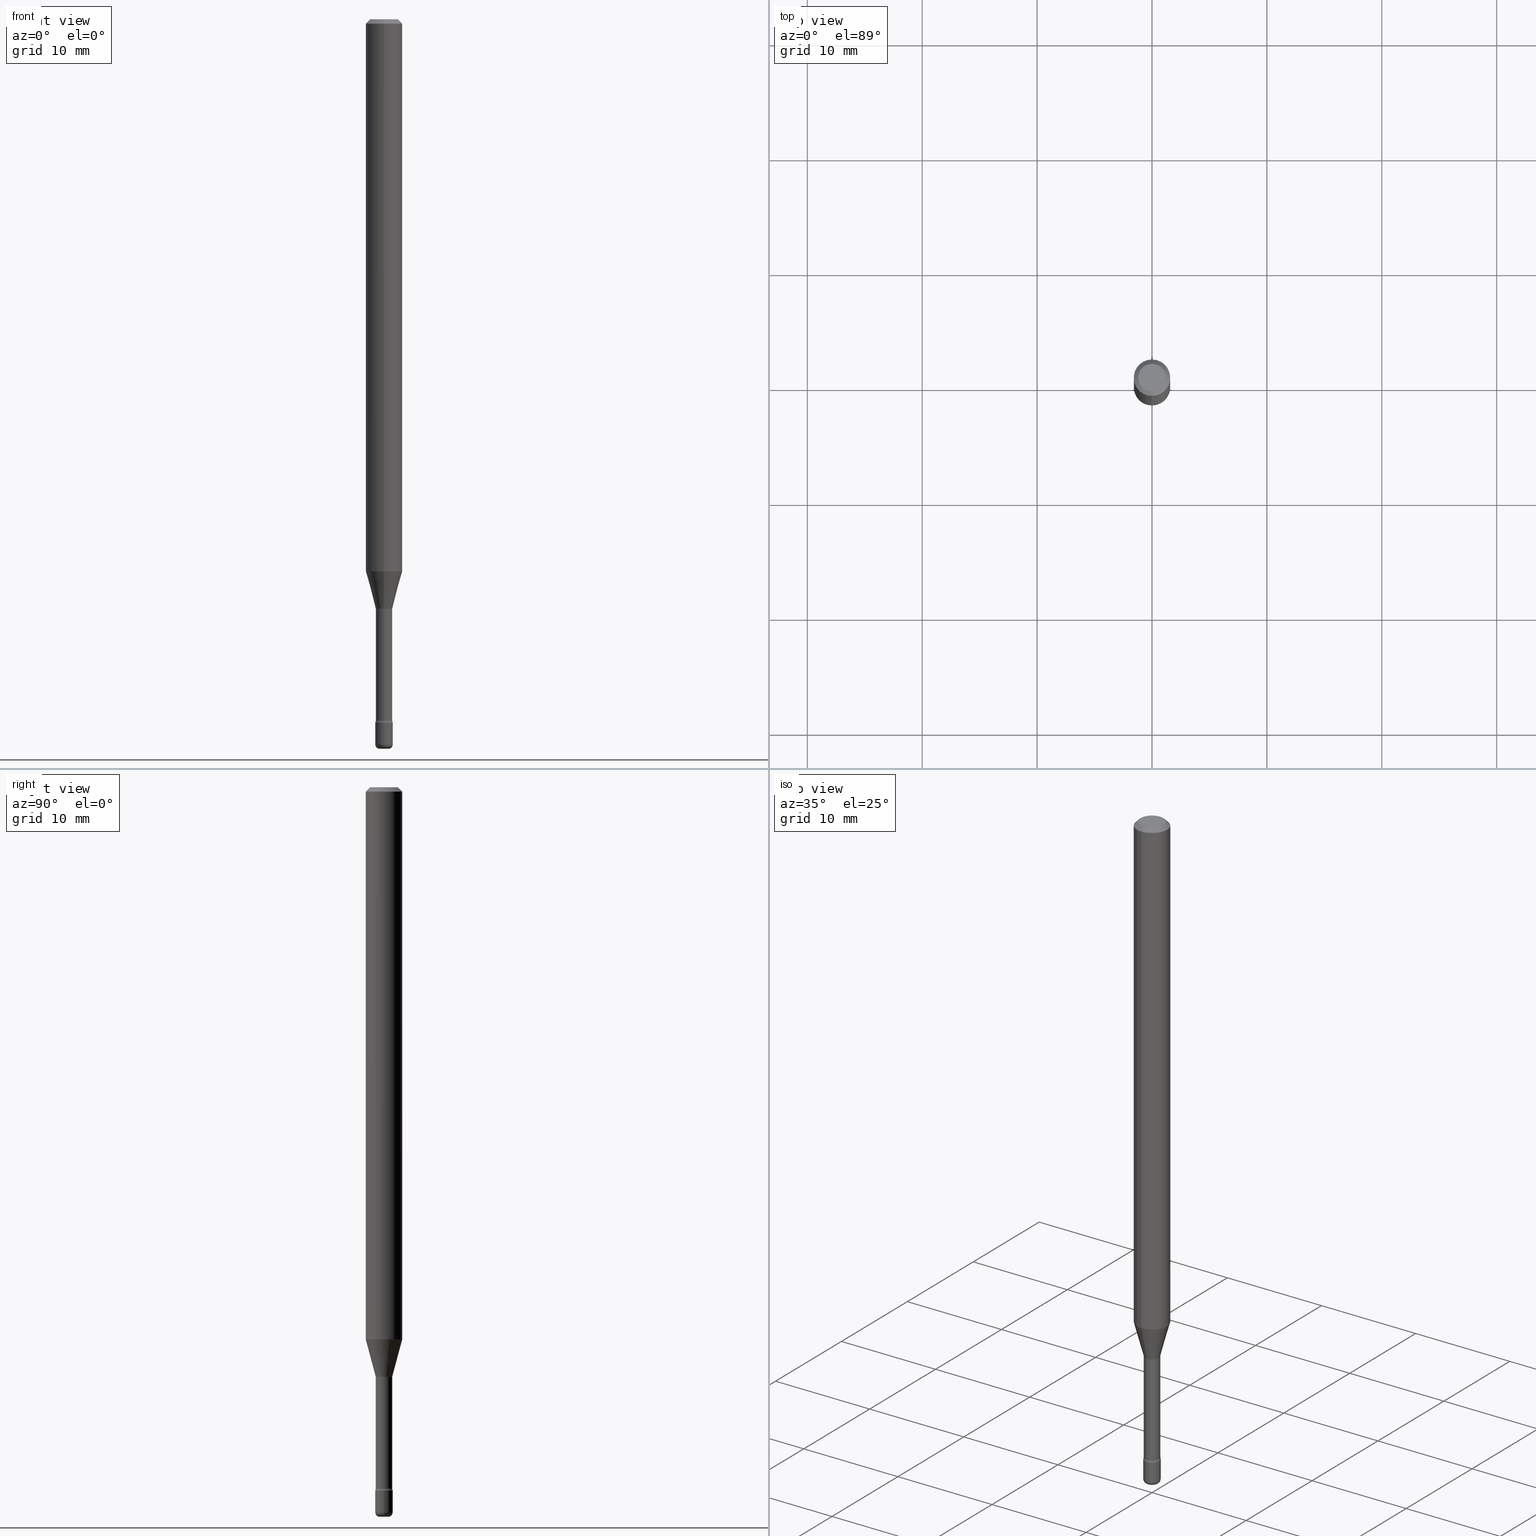
[diagram: canonical four-view strip — front | top / right | iso, engineering-drawing reading convention]
A machine part, canonical four-view strip (front | top / right | iso — engineering-drawing reading convention). The complete STEP part file that produces these views, byte-faithful:
ISO-10303-21;
HEADER;
FILE_DESCRIPTION (( 'STEP AP203' ),
    '1' );
FILE_NAME ('08828.STEP',
    '2024-03-06T20:04:18',
    ( '' ),
    ( '' ),
    'SwSTEP 2.0',
    'SolidWorks 2023',
    '' );
FILE_SCHEMA (( 'CONFIG_CONTROL_DESIGN' ));
ENDSEC;

DATA;
#1 = DIRECTION ( 'NONE',  ( -2.445549682807936912E-29, 3.491365518916084004E-15, 1.000000000000000000 ) ) ;
#2 = ADVANCED_FACE ( 'NONE', ( #336 ), #453, .T. ) ;
#3 = CARTESIAN_POINT ( 'NONE',  ( -1.169113584055446105E-44, 1.669184350826100908E-30, 4.780733988912460139E-16 ) ) ;
#4 = SHAPE_DEFINITION_REPRESENTATION ( #140, #395 ) ;
#5 = VECTOR ( 'NONE', #462, 39.37007874015748854 ) ;
#6 = ORIENTED_EDGE ( 'NONE', *, *, #440, .T. ) ;
#7 = AXIS2_PLACEMENT_3D ( 'NONE', #520, #309, #563 ) ;
#8 = CC_DESIGN_SECURITY_CLASSIFICATION ( #143, ( #531 ) ) ;
#9 = AXIS2_PLACEMENT_3D ( 'NONE', #331, #109, #168 ) ;
#10 = EDGE_LOOP ( 'NONE', ( #251, #386, #241, #548 ) ) ;
#11 = ORIENTED_EDGE ( 'NONE', *, *, #517, .T. ) ;
#12 = FACE_OUTER_BOUND ( 'NONE', #10, .T. ) ;
#13 = VECTOR ( 'NONE', #28, 39.37007874015748143 ) ;
#14 = EDGE_LOOP ( 'NONE', ( #235, #286, #69, #72 ) ) ;
#15 = EDGE_CURVE ( 'NONE', #368, #459, #401, .T. ) ;
#16 = ORIENTED_EDGE ( 'NONE', *, *, #128, .T. ) ;
#17 = UNCERTAINTY_MEASURE_WITH_UNIT (LENGTH_MEASURE( 1.000000000000000082E-05 ), #253, 'distance_accuracy_value', 'NONE');
#18 = DIRECTION ( 'NONE',  ( -6.982962677686265133E-15, -1.000000000000000000, 0.000000000000000000 ) ) ;
#19 = ORIENTED_EDGE ( 'NONE', *, *, #569, .F. ) ;
#20 = CIRCLE ( 'NONE', #95, 0.01500000000000001853 ) ;
#21 = CARTESIAN_POINT ( 'NONE',  ( 4.440892098500625669E-16, 0.06250000000000000000, 2.598630539589907883E-16 ) ) ;
#22 = VERTEX_POINT ( 'NONE', #282 ) ;
#23 = AXIS2_PLACEMENT_3D ( 'NONE', #137, #485, #132 ) ;
#24 = FACE_OUTER_BOUND ( 'NONE', #125, .T. ) ;
#25 = LOCAL_TIME ( 15, 4, 18.00000000000000000, #83 ) ;
#26 = ADVANCED_FACE ( 'NONE', ( #378 ), #80, .T. ) ;
#27 = COORDINATED_UNIVERSAL_TIME_OFFSET ( 5, 0, .BEHIND. ) ;
#28 = DIRECTION ( 'NONE',  ( -2.445468806185136877E-29, 3.491481338843145188E-15, 1.000000000000000000 ) ) ;
#29 = ORIENTED_EDGE ( 'NONE', *, *, #357, .F. ) ;
#30 = ORIENTED_EDGE ( 'NONE', *, *, #106, .T. ) ;
#31 = ORIENTED_EDGE ( 'NONE', *, *, #153, .T. ) ;
#32 = ORIENTED_EDGE ( 'NONE', *, *, #540, .T. ) ;
#33 = CARTESIAN_POINT ( 'NONE',  ( 6.076989983370064174E-29, -8.676331127025216680E-15, -2.484999999999999876 ) ) ;
#34 = DIRECTION ( 'NONE',  ( -2.445549682807936912E-29, 3.491365518916084004E-15, 1.000000000000000000 ) ) ;
#35 = CALENDAR_DATE ( 2024, 6, 3 ) ;
#36 = CARTESIAN_POINT ( 'NONE',  ( 2.131628207280890399E-16, 0.02999999999999159242, -2.410000000000000142 ) ) ;
#37 = LINE ( 'NONE', #173, #442 ) ;
#38 = EDGE_CURVE ( 'NONE', #379, #110, #552, .T. ) ;
#39 = FACE_OUTER_BOUND ( 'NONE', #494, .T. ) ;
#40 = AXIS2_PLACEMENT_3D ( 'NONE', #526, #444, #219 ) ;
#41 = CYLINDRICAL_SURFACE ( 'NONE', #7, 0.06250000000000000000 ) ;
#42 = APPROVAL ( #436, 'UNSPECIFIED' ) ;
#43 = CARTESIAN_POINT ( 'NONE',  ( 6.076989983370064174E-29, -8.676331127025216680E-15, -2.484999999999999876 ) ) ;
#44 = DIRECTION ( 'NONE',  ( -2.445468806185136877E-29, 3.491481338843145188E-15, 1.000000000000000000 ) ) ;
#45 = PRODUCT ( '08828', '08828', '', ( #399 ) ) ;
#46 = FACE_OUTER_BOUND ( 'NONE', #497, .T. ) ;
#47 = PERSON_AND_ORGANIZATION ( #507, #202 ) ;
#48 = DIRECTION ( 'NONE',  ( -2.445468806185136597E-29, 3.491481338843145583E-15, 1.000000000000000000 ) ) ;
#49 = DIRECTION ( 'NONE',  ( 1.000000000000000000, -6.982962677686299054E-15, 0.000000000000000000 ) ) ;
#50 = CALENDAR_DATE ( 2024, 6, 3 ) ;
#51 = EDGE_CURVE ( 'NONE', #159, #110, #499, .T. ) ;
#52 = AXIS2_PLACEMENT_3D ( 'NONE', #506, #555, #334 ) ;
#53 = VERTEX_POINT ( 'NONE', #333 ) ;
#54 = CARTESIAN_POINT ( 'NONE',  ( 0.01500000000000000291, -8.833447787273159890E-15, -2.500000000000000000 ) ) ;
#55 = FACE_OUTER_BOUND ( 'NONE', #367, .T. ) ;
#56 = DIRECTION ( 'NONE',  ( -2.445549682807936912E-29, 3.491365518916084004E-15, 1.000000000000000000 ) ) ;
#57 = DIRECTION ( 'NONE',  ( -6.982962677686265133E-15, -1.000000000000000000, 3.491365518916083609E-15 ) ) ;
#58 = DIRECTION ( 'NONE',  ( 2.445549682807936912E-29, -3.491365518916084004E-15, -1.000000000000000000 ) ) ;
#59 = CIRCLE ( 'NONE', #76, 0.01500000000000000291 ) ;
#60 = AXIS2_PLACEMENT_3D ( 'NONE', #571, #48, #558 ) ;
#61 = EDGE_CURVE ( 'NONE', #276, #379, #254, .T. ) ;
#62 = CIRCLE ( 'NONE', #355, 0.03000000000000000583 ) ;
#63 = ORIENTED_EDGE ( 'NONE', *, *, #446, .T. ) ;
#64 = DATE_AND_TIME ( #35, #239 ) ;
#65 = DIRECTION ( 'NONE',  ( 4.937700262164546464E-15, 0.7071067811865449082, -0.7071067811865501263 ) ) ;
#66 = AXIS2_PLACEMENT_3D ( 'NONE', #570, #478, #130 ) ;
#67 = CIRCLE ( 'NONE', #417, 0.04750000000000000749 ) ;
#68 = CARTESIAN_POINT ( 'NONE',  ( -0.01500000000000000291, -8.569749716661202346E-15, -2.484999999999999876 ) ) ;
#69 = ORIENTED_EDGE ( 'NONE', *, *, #148, .T. ) ;
#70 = DIRECTION ( 'NONE',  ( -2.445549682807936912E-29, 3.491365518916084004E-15, 1.000000000000000000 ) ) ;
#71 = CARTESIAN_POINT ( 'NONE',  ( 4.944839800127768630E-29, -7.059453053068826895E-15, -2.021974787463811207 ) ) ;
#72 = ORIENTED_EDGE ( 'NONE', *, *, #556, .F. ) ;
#73 = EDGE_CURVE ( 'NONE', #337, #195, #118, .T. ) ;
#74 = CARTESIAN_POINT ( 'NONE',  ( 4.440892098501091590E-16, 0.06249999999999995143, -0.01500000000000024578 ) ) ;
#75 = ORIENTED_EDGE ( 'NONE', *, *, #341, .F. ) ;
#76 = AXIS2_PLACEMENT_3D ( 'NONE', #166, #208, #298 ) ;
#77 = MANIFOLD_SOLID_BREP ( 'Body-Move/Copy2[1]', #111 ) ;
#78 = LOCAL_TIME ( 15, 4, 18.00000000000000000, #481 ) ;
#79 = DIRECTION ( 'NONE',  ( -2.445549682807936912E-29, 3.491365518916084004E-15, 1.000000000000000000 ) ) ;
#80 = CYLINDRICAL_SURFACE ( 'NONE', #9, 0.03000000000000000583 ) ;
#81 = ORIENTED_EDGE ( 'NONE', *, *, #227, .F. ) ;
#82 = DIRECTION ( 'NONE',  ( -6.982962677686265922E-15, -1.000000000000000000, 0.000000000000000000 ) ) ;
#83 = COORDINATED_UNIVERSAL_TIME_OFFSET ( 5, 0, .BEHIND. ) ;
#84 = DIRECTION ( 'NONE',  ( 1.839019923739598738E-15, 0.2588190451025247363, 0.9659258262890673130 ) ) ;
#85 = EDGE_LOOP ( 'NONE', ( #356, #105, #541, #146 ) ) ;
#86 = DIRECTION ( 'NONE',  ( 1.000000000000000000, -6.982962677686266711E-15, 4.876176775795935793E-29 ) ) ;
#87 = CC_DESIGN_PERSON_AND_ORGANIZATION_ASSIGNMENT ( #152, #323, ( #531 ) ) ;
#88 = TOROIDAL_SURFACE ( 'NONE', #66, 0.04320000000000001616, 0.01500000000000001159 ) ;
#89 = DIRECTION ( 'NONE',  ( -2.445549682807936912E-29, 3.491365518916084004E-15, 1.000000000000000000 ) ) ;
#90 = AXIS2_PLACEMENT_3D ( 'NONE', #313, #185, #187 ) ;
#91 = SECURITY_CLASSIFICATION_LEVEL ( 'unclassified' ) ;
#92 = CYLINDRICAL_SURFACE ( 'NONE', #400, 0.06250000000000000000 ) ;
#93 = ORIENTED_EDGE ( 'NONE', *, *, #267, .T. ) ;
#94 = FACE_OUTER_BOUND ( 'NONE', #85, .T. ) ;
#95 = AXIS2_PLACEMENT_3D ( 'NONE', #245, #413, #250 ) ;
#96 = TOROIDAL_SURFACE ( 'NONE', #201, 0.01500000000000000291, 0.01500000000000039843 ) ;
#97 = VECTOR ( 'NONE', #44, 39.37007874015748143 ) ;
#98 = CARTESIAN_POINT ( 'NONE',  ( 3.840629472727447874E-16, 0.04750000000000000749, -1.929345507921889422E-16 ) ) ;
#99 = ORIENTED_EDGE ( 'NONE', *, *, #556, .T. ) ;
#100 = ADVANCED_FACE ( 'NONE', ( #456 ), #234, .T. ) ;
#101 = CARTESIAN_POINT ( 'NONE',  ( 5.876156823005485882E-29, -8.389594600327222537E-15, -2.402875394747777449 ) ) ;
#102 = ORIENTED_EDGE ( 'NONE', *, *, #38, .F. ) ;
#103 = CONICAL_SURFACE ( 'NONE', #457, 0.02871111260566398468, 0.2617993877991500740 ) ;
#104 = EDGE_LOOP ( 'NONE', ( #297, #375, #508, #342 ) ) ;
#105 = ORIENTED_EDGE ( 'NONE', *, *, #73, .T. ) ;
#106 = EDGE_CURVE ( 'NONE', #230, #361, #458, .T. ) ;
#107 = DIRECTION ( 'NONE',  ( -2.445549682807936632E-29, 3.491365518916083609E-15, 1.000000000000000000 ) ) ;
#108 = AXIS2_PLACEMENT_3D ( 'NONE', #435, #56, #310 ) ;
#109 = DIRECTION ( 'NONE',  ( -2.445468806185136597E-29, 3.491481338843145583E-15, 1.000000000000000000 ) ) ;
#110 = VERTEX_POINT ( 'NONE', #74 ) ;
#111 = CLOSED_SHELL ( 'NONE', ( #26, #193, #461, #319, #405, #509 ) ) ;
#112 = AXIS2_PLACEMENT_3D ( 'NONE', #525, #396, #516 ) ;
#113 = DIRECTION ( 'NONE',  ( -1.000000000000000000, 6.982962677686265922E-15, -4.883557194083112340E-29 ) ) ;
#114 = CARTESIAN_POINT ( 'NONE',  ( 2.003730514843482726E-16, 0.02820000000000000631, 3.796168912578124951E-16 ) ) ;
#115 = CARTESIAN_POINT ( 'NONE',  ( 5.893579822906179826E-29, -8.414470026611981678E-15, -2.410000000000000142 ) ) ;
#116 = CARTESIAN_POINT ( 'NONE',  ( 3.668324524211912374E-31, -5.237048278374135497E-17, -0.01500000000000002720 ) ) ;
#117 = CC_DESIGN_PERSON_AND_ORGANIZATION_ASSIGNMENT ( #338, #206, ( #384 ) ) ;
#118 = LINE ( 'NONE', #114, #524 ) ;
#119 = ORIENTED_EDGE ( 'NONE', *, *, #374, .T. ) ;
#120 = LENGTH_MEASURE_WITH_UNIT ( LENGTH_MEASURE( 0.02539999999999999897 ), #183 );
#121 = EDGE_LOOP ( 'NONE', ( #244, #30, #402, #475 ) ) ;
#122 = ORIENTED_EDGE ( 'NONE', *, *, #440, .F. ) ;
#123 = CIRCLE ( 'NONE', #521, 0.02999999999999999889 ) ;
#124 = DIRECTION ( 'NONE',  ( -6.982962677686265922E-15, -1.000000000000000000, 3.491365518916083609E-15 ) ) ;
#125 = EDGE_LOOP ( 'NONE', ( #326, #63, #564, #19 ) ) ;
#126 = DIRECTION ( 'NONE',  ( -6.982962677686265133E-15, -1.000000000000000000, 0.000000000000000000 ) ) ;
#127 = EDGE_LOOP ( 'NONE', ( #353, #99, #279, #460 ) ) ;
#128 = EDGE_CURVE ( 'NONE', #463, #195, #493, .T. ) ;
#129 = DIRECTION ( 'NONE',  ( -6.982962677686267499E-15, -1.000000000000000000, 0.000000000000000000 ) ) ;
#130 = DIRECTION ( 'NONE',  ( -6.982962677686266711E-15, -1.000000000000000000, 3.491365518916084398E-15 ) ) ;
#131 = CARTESIAN_POINT ( 'NONE',  ( -0.03000000000000020012, -8.463168306297186435E-15, -2.484999999999999876 ) ) ;
#132 = DIRECTION ( 'NONE',  ( -6.982962677686265133E-15, -1.000000000000000000, 0.000000000000000000 ) ) ;
#133 = AXIS2_PLACEMENT_3D ( 'NONE', #381, #205, #82 ) ;
#134 = CARTESIAN_POINT ( 'NONE',  ( 6.630007218027207652E-46, -9.454209125010409695E-32, -2.709468864367492987E-17 ) ) ;
#135 = VECTOR ( 'NONE', #365, 39.37007874015748143 ) ;
#136 = FACE_OUTER_BOUND ( 'NONE', #268, .T. ) ;
#137 = CARTESIAN_POINT ( 'NONE',  ( 4.944839800127768630E-29, -7.059453053068826895E-15, -2.021974787463811207 ) ) ;
#138 = DIRECTION ( 'NONE',  ( -2.445468806185136597E-29, 3.491481338843145583E-15, 1.000000000000000000 ) ) ;
#139 = CARTESIAN_POINT ( 'NONE',  ( -1.969195475107527270E-16, -0.02820000000000000631, 5.765299065246797300E-16 ) ) ;
#140 = PRODUCT_DEFINITION_SHAPE ( 'NONE', 'NONE',  #384 ) ;
#141 = CIRCLE ( 'NONE', #529, 0.02820000000000000631 ) ;
#142 = FACE_OUTER_BOUND ( 'NONE', #289, .T. ) ;
#143 = SECURITY_CLASSIFICATION ( '', '', #91 ) ;
#144 = CC_DESIGN_DATE_AND_TIME_ASSIGNMENT ( #304, #311, ( #143 ) ) ;
#145 = ORIENTED_EDGE ( 'NONE', *, *, #374, .F. ) ;
#146 = ORIENTED_EDGE ( 'NONE', *, *, #267, .F. ) ;
#147 = DIRECTION ( 'NONE',  ( -2.445468806185136597E-29, 3.491481338843145583E-15, 1.000000000000000000 ) ) ;
#148 = EDGE_CURVE ( 'NONE', #459, #156, #161, .T. ) ;
#149 = CARTESIAN_POINT ( 'NONE',  ( 0.000000000000000000, 0.000000000000000000, 0.000000000000000000 ) ) ;
#150 = CARTESIAN_POINT ( 'NONE',  ( 6.113672015462842613E-29, -8.728703347107864943E-15, -2.500000000000000000 ) ) ;
#151 = CIRCLE ( 'NONE', #52, 0.02871111260566398468 ) ;
#152 = PERSON_AND_ORGANIZATION ( #507, #202 ) ;
#153 = EDGE_CURVE ( 'NONE', #368, #195, #20, .T. ) ;
#154 = EDGE_LOOP ( 'NONE', ( #554, #11, #542, #537 ) ) ;
#155 = APPLICATION_CONTEXT ( 'configuration controlled 3d designs of mechanical parts and assemblies' ) ;
#156 = VERTEX_POINT ( 'NONE', #204 ) ;
#157 = ORIENTED_EDGE ( 'NONE', *, *, #153, .F. ) ;
#158 = ORIENTED_EDGE ( 'NONE', *, *, #389, .F. ) ;
#159 = VERTEX_POINT ( 'NONE', #511 ) ;
#160 = CIRCLE ( 'NONE', #431, 0.01500000000000001159 ) ;
#161 = LINE ( 'NONE', #288, #5 ) ;
#162 = LOCAL_TIME ( 15, 4, 18.00000000000000000, #477 ) ;
#163 = EDGE_LOOP ( 'NONE', ( #75, #533 ) ) ;
#164 = AXIS2_PLACEMENT_3D ( 'NONE', #469, #504, #18 ) ;
#165 = DIRECTION ( 'NONE',  ( -2.445549682807936912E-29, 3.491365518916084004E-15, 1.000000000000000000 ) ) ;
#166 = CARTESIAN_POINT ( 'NONE',  ( 6.113672015462842613E-29, -8.728703347107864943E-15, -2.500000000000000000 ) ) ;
#167 = DIRECTION ( 'NONE',  ( -2.445549682807936912E-29, 3.491365518916084004E-15, 1.000000000000000000 ) ) ;
#168 = DIRECTION ( 'NONE',  ( 1.000000000000000000, -6.982962677686266711E-15, 4.876176775795935793E-29 ) ) ;
#169 = CIRCLE ( 'NONE', #232, 0.04750000000000000749 ) ;
#170 = CC_DESIGN_APPROVAL ( #189, ( #531 ) ) ;
#171 = FACE_OUTER_BOUND ( 'NONE', #163, .T. ) ;
#172 = DIRECTION ( 'NONE',  ( -1.000000000000000000, 6.982962677686265922E-15, -4.883557194083112340E-29 ) ) ;
#173 = CARTESIAN_POINT ( 'NONE',  ( -4.364351673553916201E-16, -0.06250000000000000000, 6.962837438235013874E-16 ) ) ;
#174 = VERTEX_POINT ( 'NONE', #221 ) ;
#175 = DIRECTION ( 'NONE',  ( -2.445549682807936912E-29, 3.491365518916084004E-15, 1.000000000000000000 ) ) ;
#176 = DIRECTION ( 'NONE',  ( 1.000000000000000000, -7.105427357601001070E-15, 4.926314090157052775E-29 ) ) ;
#177 = DIRECTION ( 'NONE',  ( -2.445468806185136597E-29, 3.491481338843145583E-15, 1.000000000000000000 ) ) ;
#178 = ORIENTED_EDGE ( 'NONE', *, *, #410, .T. ) ;
#179 = AXIS2_PLACEMENT_3D ( 'NONE', #544, #70, #498 ) ;
#180 = CARTESIAN_POINT ( 'NONE',  ( 6.630007218027207652E-46, -9.454209125010409695E-32, -2.709468864367492987E-17 ) ) ;
#181 = APPROVAL_PERSON_ORGANIZATION ( #214, #189, #472 ) ;
#182 = PERSON_AND_ORGANIZATION ( #507, #202 ) ;
#183 =( LENGTH_UNIT ( ) NAMED_UNIT ( * ) SI_UNIT ( $, .METRE. ) );
#184 = CC_DESIGN_PERSON_AND_ORGANIZATION_ASSIGNMENT ( #265, #445, ( #143 ) ) ;
#185 = DIRECTION ( 'NONE',  ( -2.445549682807936912E-29, 3.491365518916084004E-15, 1.000000000000000000 ) ) ;
#186 = ADVANCED_FACE ( 'NONE', ( #269 ), #88, .F. ) ;
#187 = DIRECTION ( 'NONE',  ( -6.982962677686265922E-15, -1.000000000000000000, 0.000000000000000000 ) ) ;
#188 = APPLICATION_PROTOCOL_DEFINITION ( 'international standard', 'config_control_design', 1994, #155 ) ;
#189 = APPROVAL ( #536, 'UNSPECIFIED' ) ;
#190 = EDGE_LOOP ( 'NONE', ( #454, #366, #398, #372 ) ) ;
#191 = AXIS2_PLACEMENT_3D ( 'NONE', #294, #176, #344 ) ;
#192 = CC_DESIGN_APPROVAL ( #283, ( #384 ) ) ;
#193 = ADVANCED_FACE ( 'NONE', ( #488 ), #240, .T. ) ;
#194 = DIRECTION ( 'NONE',  ( 1.000000000000000000, -6.982962677686331397E-15, 0.000000000000000000 ) ) ;
#195 = VERTEX_POINT ( 'NONE', #518 ) ;
#196 = ADVANCED_FACE ( 'NONE', ( #94 ), #302, .T. ) ;
#197 = CARTESIAN_POINT ( 'NONE',  ( 3.668324524211912374E-31, -5.237048278374135497E-17, -0.01500000000000002720 ) ) ;
#198 = PLANE ( 'NONE',  #216 ) ;
#199 = EDGE_CURVE ( 'NONE', #22, #361, #62, .T. ) ;
#200 = CARTESIAN_POINT ( 'NONE',  ( 2.067679361062481029E-16, 0.02819999999999161719, -2.402875394747777449 ) ) ;
#201 = AXIS2_PLACEMENT_3D ( 'NONE', #33, #212, #380 ) ;
#202 = ORGANIZATION ( 'UNSPECIFIED', 'UNSPECIFIED', '' ) ;
#203 = VECTOR ( 'NONE', #560, 39.37007874015748143 ) ;
#204 = CARTESIAN_POINT ( 'NONE',  ( -4.364351673553456197E-16, -0.06250000000000664746, -1.891990657300387513 ) ) ;
#205 = DIRECTION ( 'NONE',  ( -2.445549682807936912E-29, 3.491365518916084004E-15, 1.000000000000000000 ) ) ;
#206 = PERSON_AND_ORGANIZATION_ROLE ( 'creator' ) ;
#207 = DIRECTION ( 'NONE',  ( 2.445549682807936912E-29, -3.491365518916084004E-15, -1.000000000000000000 ) ) ;
#208 = DIRECTION ( 'NONE',  ( -2.445468806185136597E-29, 3.491481338843145583E-15, 1.000000000000000000 ) ) ;
#209 =( NAMED_UNIT ( * ) PLANE_ANGLE_UNIT ( ) SI_UNIT ( $, .RADIAN. ) );
#210 = EDGE_LOOP ( 'NONE', ( #119, #296 ) ) ;
#211 = ORIENTED_EDGE ( 'NONE', *, *, #61, .F. ) ;
#212 = DIRECTION ( 'NONE',  ( -2.445468806185136597E-29, 3.491481338843145583E-15, 1.000000000000000000 ) ) ;
#213 = DIRECTION ( 'NONE',  ( -6.982962677686265922E-15, -1.000000000000000000, 3.483106191921935554E-15 ) ) ;
#214 = PERSON_AND_ORGANIZATION ( #507, #202 ) ;
#215 = DIRECTION ( 'NONE',  ( -2.445468806185136597E-29, 3.491481338843145583E-15, 1.000000000000000000 ) ) ;
#216 = AXIS2_PLACEMENT_3D ( 'NONE', #255, #523, #505 ) ;
#217 = DIRECTION ( 'NONE',  ( -2.445549682807936912E-29, 3.491365518916083609E-15, 1.000000000000000000 ) ) ;
#218 = FACE_OUTER_BOUND ( 'NONE', #127, .T. ) ;
#219 = DIRECTION ( 'NONE',  ( 1.000000000000000000, -6.982962677686211490E-15, 0.000000000000000000 ) ) ;
#220 = DIRECTION ( 'NONE',  ( -2.445549682807936912E-29, 3.491365518916084004E-15, 1.000000000000000000 ) ) ;
#221 = CARTESIAN_POINT ( 'NONE',  ( -0.02999999999999999889, -8.332237756090568145E-15, -2.410000000000000142 ) ) ;
#222 = ADVANCED_FACE ( 'NONE', ( #352 ), #363, .F. ) ;
#223 = CALENDAR_DATE ( 2024, 6, 3 ) ;
#224 = CARTESIAN_POINT ( 'NONE',  ( 4.944676269635571097E-29, -7.059687238041231398E-15, -2.021974787463811207 ) ) ;
#225 = AXIS2_PLACEMENT_3D ( 'NONE', #476, #287, #503 ) ;
#226 = DATE_AND_TIME ( #50, #162 ) ;
#227 = EDGE_CURVE ( 'NONE', #324, #532, #231, .T. ) ;
#228 = APPLICATION_PROTOCOL_DEFINITION ( 'international standard', 'config_control_design', 1994, #391 ) ;
#229 = CARTESIAN_POINT ( 'NONE',  ( -1.169113584055446105E-44, 1.669184350826100908E-30, 4.780733988912460139E-16 ) ) ;
#230 = VERTEX_POINT ( 'NONE', #264 ) ;
#231 = CIRCLE ( 'NONE', #90, 0.02999999999999999889 ) ;
#232 = AXIS2_PLACEMENT_3D ( 'NONE', #134, #220, #57 ) ;
#233 = AXIS2_PLACEMENT_3D ( 'NONE', #259, #172, #129 ) ;
#234 = CONICAL_SURFACE ( 'NONE', #468, 0.02871111260566398468, 0.2617993877991500740 ) ;
#235 = ORIENTED_EDGE ( 'NONE', *, *, #517, .F. ) ;
#236 = LINE ( 'NONE', #412, #13 ) ;
#237 = VECTOR ( 'NONE', #84, 39.37007874015748854 ) ;
#238 = CARTESIAN_POINT ( 'NONE',  ( 0.000000000000000000, 0.000000000000000000, 0.000000000000000000 ) ) ;
#239 = LOCAL_TIME ( 15, 4, 18.00000000000000000, #299 ) ;
#240 = TOROIDAL_SURFACE ( 'NONE', #112, 0.01500000000000000291, 0.01500000000000039843 ) ;
#241 = ORIENTED_EDGE ( 'NONE', *, *, #495, .T. ) ;
#242 = CARTESIAN_POINT ( 'NONE',  ( -2.004886277601499384E-16, -0.02871111260567103113, -2.018092501787273285 ) ) ;
#243 = EDGE_CURVE ( 'NONE', #195, #463, #467, .T. ) ;
#244 = ORIENTED_EDGE ( 'NONE', *, *, #341, .T. ) ;
#245 = CARTESIAN_POINT ( 'NONE',  ( 3.069544618484126497E-16, 0.04319999999999293849, -2.021974787463811207 ) ) ;
#246 = ORIENTED_EDGE ( 'NONE', *, *, #15, .F. ) ;
#247 = CARTESIAN_POINT ( 'NONE',  ( 2.094888803306469144E-16, 0.02999999999999158548, -2.410000000000000142 ) ) ;
#248 = CIRCLE ( 'NONE', #284, 0.01500000000000000291 ) ;
#249 = AXIS2_PLACEMENT_3D ( 'NONE', #149, #491, #271 ) ;
#250 = DIRECTION ( 'NONE',  ( 7.105427357601001859E-15, 1.000000000000000000, 0.000000000000000000 ) ) ;
#251 = ORIENTED_EDGE ( 'NONE', *, *, #565, .F. ) ;
#252 = ADVANCED_FACE ( 'NONE', ( #527 ), #103, .T. ) ;
#253 =( CONVERSION_BASED_UNIT ( 'INCH', #120 ) LENGTH_UNIT ( ) NAMED_UNIT ( #408 ) );
#254 = LINE ( 'NONE', #423, #203 ) ;
#255 = CARTESIAN_POINT ( 'NONE',  ( 3.316907271900976589E-16, 0.04750000000000000749, 5.964949297527159745E-17 ) ) ;
#256 = CALENDAR_DATE ( 2024, 6, 3 ) ;
#257 = CARTESIAN_POINT ( 'NONE',  ( 5.876351159452423787E-29, -8.389316299474264724E-15, -2.402875394747777449 ) ) ;
#258 = EDGE_LOOP ( 'NONE', ( #404, #178 ) ) ;
#259 = CARTESIAN_POINT ( 'NONE',  ( -3.016639876759972611E-16, -0.04320000000000705914, -2.021974787463810763 ) ) ;
#260 = CIRCLE ( 'NONE', #233, 0.01500000000000001853 ) ;
#261 = CYLINDRICAL_SURFACE ( 'NONE', #108, 0.02820000000000000631 ) ;
#262 = VERTEX_POINT ( 'NONE', #98 ) ;
#263 = CC_DESIGN_DATE_AND_TIME_ASSIGNMENT ( #64, #382, ( #384 ) ) ;
#264 = CARTESIAN_POINT ( 'NONE',  ( -0.01500000000000000291, -8.542645121520517733E-15, -2.500000000000000000 ) ) ;
#265 = PERSON_AND_ORGANIZATION ( #507, #202 ) ;
#266 = MANIFOLD_SOLID_BREP ( 'Body-Move/Copy2[2]', #393 ) ;
#267 = EDGE_CURVE ( 'NONE', #351, #463, #345, .T. ) ;
#268 = EDGE_LOOP ( 'NONE', ( #407, #32, #421, #293 ) ) ;
#269 = FACE_OUTER_BOUND ( 'NONE', #104, .T. ) ;
#270 = CIRCLE ( 'NONE', #133, 0.02999999999999999889 ) ;
#271 = DIRECTION ( 'NONE',  ( 1.000000000000000000, 0.000000000000000000, 0.000000000000000000 ) ) ;
#272 = DIRECTION ( 'NONE',  ( -2.445549682807936632E-29, 3.491365518916083609E-15, 1.000000000000000000 ) ) ;
#273 = ORIENTED_EDGE ( 'NONE', *, *, #346, .T. ) ;
#274 = CARTESIAN_POINT ( 'NONE',  ( 3.240469674128031254E-16, 0.02871111260565693823, -2.018092501787273285 ) ) ;
#275 = DIRECTION ( 'NONE',  ( -2.445549682807936912E-29, 3.491365518916084004E-15, 1.000000000000000000 ) ) ;
#276 = VERTEX_POINT ( 'NONE', #349 ) ;
#277 = CC_DESIGN_APPROVAL ( #42, ( #143 ) ) ;
#278 = EDGE_CURVE ( 'NONE', #156, #159, #330, .T. ) ;
#279 = ORIENTED_EDGE ( 'NONE', *, *, #466, .T. ) ;
#280 = ADVANCED_FACE ( 'NONE', ( #46 ), #261, .T. ) ;
#281 = EDGE_CURVE ( 'NONE', #317, #22, #295, .T. ) ;
#282 = CARTESIAN_POINT ( 'NONE',  ( 0.03000000000000020012, -8.885820007355804997E-15, -2.484999999999999876 ) ) ;
#283 = APPROVAL ( #530, 'UNSPECIFIED' ) ;
#284 = AXIS2_PLACEMENT_3D ( 'NONE', #150, #147, #194 ) ;
#285 = DIRECTION ( 'NONE',  ( -6.982962677686265133E-15, -1.000000000000000000, 0.000000000000000000 ) ) ;
#286 = ORIENTED_EDGE ( 'NONE', *, *, #15, .T. ) ;
#287 = DIRECTION ( 'NONE',  ( 2.438088387897960049E-29, -3.491481338843145188E-15, -1.000000000000000000 ) ) ;
#288 = CARTESIAN_POINT ( 'NONE',  ( -2.004886277601499384E-16, -0.02871111260567103113, -2.018092501787273285 ) ) ;
#289 = EDGE_LOOP ( 'NONE', ( #157, #29, #424, #16 ) ) ;
#290 = PLANE ( 'NONE',  #225 ) ;
#291 = CALENDAR_DATE ( 2024, 6, 3 ) ;
#292 = DIRECTION ( 'NONE',  ( -6.982962677686265133E-15, -1.000000000000000000, 0.000000000000000000 ) ) ;
#293 = ORIENTED_EDGE ( 'NONE', *, *, #327, .F. ) ;
#294 = CARTESIAN_POINT ( 'NONE',  ( 3.069544618484221160E-16, 0.04319999999999162704, -2.402875394747777893 ) ) ;
#295 = CIRCLE ( 'NONE', #40, 0.01500000000000039843 ) ;
#296 = ORIENTED_EDGE ( 'NONE', *, *, #389, .T. ) ;
#297 = ORIENTED_EDGE ( 'NONE', *, *, #540, .F. ) ;
#298 = DIRECTION ( 'NONE',  ( 1.000000000000000000, -6.982962677686331397E-15, 0.000000000000000000 ) ) ;
#299 = COORDINATED_UNIVERSAL_TIME_OFFSET ( 5, 0, .BEHIND. ) ;
#300 = DIRECTION ( 'NONE',  ( -2.445549682807936912E-29, 3.491365518916084004E-15, 1.000000000000000000 ) ) ;
#301 = DIRECTION ( 'NONE',  ( -2.438088387897960049E-29, 3.491481338843145188E-15, 1.000000000000000000 ) ) ;
#302 = CYLINDRICAL_SURFACE ( 'NONE', #371, 0.02820000000000000631 ) ;
#303 = CARTESIAN_POINT ( 'NONE',  ( -4.364351673553912750E-16, -0.06250000000000005551, -0.01499999999999981036 ) ) ;
#304 = DATE_AND_TIME ( #223, #78 ) ;
#305 = ADVANCED_FACE ( 'NONE', ( #387 ), #92, .T. ) ;
#306 = VECTOR ( 'NONE', #272, 39.37007874015748143 ) ;
#307 = DIRECTION ( 'NONE',  ( -6.982962677686265133E-15, -1.000000000000000000, 3.491365518916085187E-15 ) ) ;
#308 = CIRCLE ( 'NONE', #322, 0.06250000000000000000 ) ;
#309 = DIRECTION ( 'NONE',  ( -2.445549682807936912E-29, 3.491365518916084004E-15, 1.000000000000000000 ) ) ;
#310 = DIRECTION ( 'NONE',  ( -6.982962677686265133E-15, -1.000000000000000000, 3.491365518916085187E-15 ) ) ;
#311 = DATE_TIME_ROLE ( 'classification_date' ) ;
#312 = DIRECTION ( 'NONE',  ( 1.000000000000000000, -6.982962677686265922E-15, 4.876176775795935793E-29 ) ) ;
#313 = CARTESIAN_POINT ( 'NONE',  ( 5.893774735567129219E-29, -8.414190900587763100E-15, -2.410000000000000142 ) ) ;
#314 = CARTESIAN_POINT ( 'NONE',  ( 4.935345477622942055E-29, -7.045898574723181439E-15, -2.018092501787273285 ) ) ;
#315 = AXIS2_PLACEMENT_3D ( 'NONE', #480, #89, #448 ) ;
#316 = CARTESIAN_POINT ( 'NONE',  ( 5.893579822906179826E-29, -8.414470026611981678E-15, -2.410000000000000142 ) ) ;
#317 = VERTEX_POINT ( 'NONE', #54 ) ;
#318 = FACE_OUTER_BOUND ( 'NONE', #258, .T. ) ;
#319 = ADVANCED_FACE ( 'NONE', ( #171 ), #290, .T. ) ;
#320 = DIRECTION ( 'NONE',  ( -6.982962677686265133E-15, -1.000000000000000000, 3.491365518916083609E-15 ) ) ;
#321 = TOROIDAL_SURFACE ( 'NONE', #179, 0.04320000000000000229, 0.01500000000000002373 ) ;
#322 = AXIS2_PLACEMENT_3D ( 'NONE', #566, #79, #514 ) ;
#323 = PERSON_AND_ORGANIZATION_ROLE ( 'creator' ) ;
#324 = VERTEX_POINT ( 'NONE', #430 ) ;
#325 = ADVANCED_FACE ( 'NONE', ( #39 ), #422, .F. ) ;
#326 = ORIENTED_EDGE ( 'NONE', *, *, #106, .F. ) ;
#327 = EDGE_CURVE ( 'NONE', #351, #324, #160, .T. ) ;
#328 = DIRECTION ( 'NONE',  ( 7.105427357601001859E-15, 1.000000000000000000, -3.491481338843145583E-15 ) ) ;
#329 = ORIENTED_EDGE ( 'NONE', *, *, #243, .F. ) ;
#330 = CIRCLE ( 'NONE', #315, 0.06250000000000000000 ) ;
#331 = CARTESIAN_POINT ( 'NONE',  ( 0.000000000000000000, 0.000000000000000000, 0.000000000000000000 ) ) ;
#332 = PLANE ( 'NONE',  #390 ) ;
#333 = CARTESIAN_POINT ( 'NONE',  ( 0.02999999999999999889, -8.623958906942569995E-15, -2.410000000000000142 ) ) ;
#334 = DIRECTION ( 'NONE',  ( -6.982962677686265133E-15, -1.000000000000000000, 0.000000000000000000 ) ) ;
#335 = PRODUCT_RELATED_PRODUCT_CATEGORY ( 'detail', '', ( #45 ) ) ;
#336 = FACE_OUTER_BOUND ( 'NONE', #449, .T. ) ;
#337 = VERTEX_POINT ( 'NONE', #200 ) ;
#338 = PERSON_AND_ORGANIZATION ( #507, #202 ) ;
#339 =( NAMED_UNIT ( * ) SI_UNIT ( $, .STERADIAN. ) SOLID_ANGLE_UNIT ( ) );
#340 = AXIS2_PLACEMENT_3D ( 'NONE', #490, #58, #535 ) ;
#341 = EDGE_CURVE ( 'NONE', #317, #230, #59, .T. ) ;
#342 = ORIENTED_EDGE ( 'NONE', *, *, #227, .T. ) ;
#343 = EDGE_CURVE ( 'NONE', #532, #324, #270, .T. ) ;
#344 = DIRECTION ( 'NONE',  ( 7.105427357601001859E-15, 1.000000000000000000, 0.000000000000000000 ) ) ;
#345 = LINE ( 'NONE', #139, #306 ) ;
#346 = EDGE_CURVE ( 'NONE', #110, #379, #572, .T. ) ;
#347 = DIRECTION ( 'NONE',  ( 1.000000000000000000, -6.982962677686268288E-15, 0.000000000000000000 ) ) ;
#348 = DIRECTION ( 'NONE',  ( -2.445549682807936912E-29, 3.491365518916084004E-15, 1.000000000000000000 ) ) ;
#349 = CARTESIAN_POINT ( 'NONE',  ( -3.773273898774340269E-16, -0.04750000000000000749, 1.387451735048390825E-16 ) ) ;
#350 = PERSON_AND_ORGANIZATION_ROLE ( 'design_supplier' ) ;
#351 = VERTEX_POINT ( 'NONE', #373 ) ;
#352 = FACE_OUTER_BOUND ( 'NONE', #358, .T. ) ;
#353 = ORIENTED_EDGE ( 'NONE', *, *, #51, .F. ) ;
#354 = CIRCLE ( 'NONE', #191, 0.01500000000000001159 ) ;
#355 = AXIS2_PLACEMENT_3D ( 'NONE', #43, #138, #49 ) ;
#356 = ORIENTED_EDGE ( 'NONE', *, *, #528, .T. ) ;
#357 = EDGE_CURVE ( 'NONE', #459, #368, #151, .T. ) ;
#358 = EDGE_LOOP ( 'NONE', ( #246, #31, #470, #420 ) ) ;
#359 = EDGE_CURVE ( 'NONE', #337, #351, #369, .T. ) ;
#360 = APPROVAL_DATE_TIME ( #377, #283 ) ;
#361 = VERTEX_POINT ( 'NONE', #131 ) ;
#362 = TOROIDAL_SURFACE ( 'NONE', #549, 0.04320000000000001616, 0.01500000000000001159 ) ;
#363 = TOROIDAL_SURFACE ( 'NONE', #550, 0.04320000000000000229, 0.01500000000000002373 ) ;
#364 = CARTESIAN_POINT ( 'NONE',  ( 4.364351673553919652E-16, 0.06249999999999995143, -0.01500000000000024578 ) ) ;
#365 = DIRECTION ( 'NONE',  ( -2.445549682807936632E-29, 3.491365518916083609E-15, 1.000000000000000000 ) ) ;
#366 = ORIENTED_EDGE ( 'NONE', *, *, #565, .T. ) ;
#367 = EDGE_LOOP ( 'NONE', ( #158, #512, #492, #122 ) ) ;
#368 = VERTEX_POINT ( 'NONE', #274 ) ;
#369 = CIRCLE ( 'NONE', #451, 0.02820000000000000631 ) ;
#370 = AXIS2_PLACEMENT_3D ( 'NONE', #547, #165, #502 ) ;
#371 = AXIS2_PLACEMENT_3D ( 'NONE', #3, #1, #307 ) ;
#372 = ORIENTED_EDGE ( 'NONE', *, *, #495, .F. ) ;
#373 = CARTESIAN_POINT ( 'NONE',  ( -1.969195475106939815E-16, -0.02820000000000839196, -2.402875394747777449 ) ) ;
#374 = EDGE_CURVE ( 'NONE', #262, #276, #169, .T. ) ;
#375 = ORIENTED_EDGE ( 'NONE', *, *, #528, .F. ) ;
#376 = DIRECTION ( 'NONE',  ( -2.445549682807936912E-29, 3.491365518916084004E-15, 1.000000000000000000 ) ) ;
#377 = DATE_AND_TIME ( #291, #487 ) ;
#378 = FACE_OUTER_BOUND ( 'NONE', #190, .T. ) ;
#379 = VERTEX_POINT ( 'NONE', #303 ) ;
#380 = DIRECTION ( 'NONE',  ( 1.000000000000000000, -6.982962677686271444E-15, 4.883557194083114583E-29 ) ) ;
#381 = CARTESIAN_POINT ( 'NONE',  ( 5.893774735567129219E-29, -8.414190900587763100E-15, -2.410000000000000142 ) ) ;
#382 = DATE_TIME_ROLE ( 'creation_date' ) ;
#383 = AXIS2_PLACEMENT_3D ( 'NONE', #425, #177, #347 ) ;
#384 = PRODUCT_DEFINITION ( 'UNKNOWN', '', #531, #515 ) ;
#385 = CARTESIAN_POINT ( 'NONE',  ( -3.016639876759880413E-16, -0.04320000000000840529, -2.402875394747777005 ) ) ;
#386 = ORIENTED_EDGE ( 'NONE', *, *, #569, .T. ) ;
#387 = FACE_OUTER_BOUND ( 'NONE', #414, .T. ) ;
#388 = DIRECTION ( 'NONE',  ( -6.982962677686265922E-15, -1.000000000000000000, 3.491365518916084398E-15 ) ) ;
#389 = EDGE_CURVE ( 'NONE', #276, #262, #67, .T. ) ;
#390 = AXIS2_PLACEMENT_3D ( 'NONE', #115, #301, #312 ) ;
#391 = APPLICATION_CONTEXT ( 'configuration controlled 3d designs of mechanical parts and assemblies' ) ;
#392 = DIRECTION ( 'NONE',  ( -2.445549682807936912E-29, 3.491365518916084004E-15, 1.000000000000000000 ) ) ;
#393 = CLOSED_SHELL ( 'NONE', ( #222, #196, #415, #471, #305, #100, #252, #543, #2, #403, #325, #186, #280, #438 ) ) ;
#394 = APPROVAL_DATE_TIME ( #226, #42 ) ;
#395 = ADVANCED_BREP_SHAPE_REPRESENTATION ( '08828', ( #77, #266, #249 ), #522 ) ;
#396 = DIRECTION ( 'NONE',  ( -2.445468806185136597E-29, 3.491481338843145583E-15, 1.000000000000000000 ) ) ;
#397 = PERSON_AND_ORGANIZATION ( #507, #202 ) ;
#398 = ORIENTED_EDGE ( 'NONE', *, *, #427, .F. ) ;
#399 = MECHANICAL_CONTEXT ( 'NONE', #155, 'mechanical' ) ;
#400 = AXIS2_PLACEMENT_3D ( 'NONE', #229, #175, #388 ) ;
#401 = CIRCLE ( 'NONE', #164, 0.02871111260566398468 ) ;
#402 = ORIENTED_EDGE ( 'NONE', *, *, #199, .F. ) ;
#403 = ADVANCED_FACE ( 'NONE', ( #411 ), #198, .F. ) ;
#404 = ORIENTED_EDGE ( 'NONE', *, *, #427, .T. ) ;
#405 = ADVANCED_FACE ( 'NONE', ( #24 ), #96, .T. ) ;
#406 = APPROVAL_DATE_TIME ( #513, #189 ) ;
#407 = ORIENTED_EDGE ( 'NONE', *, *, #359, .F. ) ;
#408 = DIMENSIONAL_EXPONENTS ( 1.000000000000000000, 0.000000000000000000, 0.000000000000000000, 0.000000000000000000, 0.000000000000000000, 0.000000000000000000, 0.000000000000000000 ) ;
#409 = DIRECTION ( 'NONE',  ( -1.000000000000000000, 7.105427357600996337E-15, 0.000000000000000000 ) ) ;
#410 = EDGE_CURVE ( 'NONE', #174, #53, #479, .T. ) ;
#411 = FACE_OUTER_BOUND ( 'NONE', #210, .T. ) ;
#412 = CARTESIAN_POINT ( 'NONE',  ( 0.03000000000000000583, -2.094888803305880457E-16, 1.462853032738781053E-30 ) ) ;
#413 = DIRECTION ( 'NONE',  ( 1.000000000000000000, -7.105427357601001070E-15, 4.926314090157052775E-29 ) ) ;
#414 = EDGE_LOOP ( 'NONE', ( #429, #501, #102, #483 ) ) ;
#415 = ADVANCED_FACE ( 'NONE', ( #136 ), #362, .F. ) ;
#416 = DIRECTION ( 'NONE',  ( -6.982962677686266711E-15, -1.000000000000000000, 0.000000000000000000 ) ) ;
#417 = AXIS2_PLACEMENT_3D ( 'NONE', #180, #348, #320 ) ;
#418 = APPROVAL_ROLE ( '' ) ;
#419 = CIRCLE ( 'NONE', #60, 0.03000000000000000583 ) ;
#420 = ORIENTED_EDGE ( 'NONE', *, *, #553, .F. ) ;
#421 = ORIENTED_EDGE ( 'NONE', *, *, #343, .T. ) ;
#422 = PLANE ( 'NONE',  #551 ) ;
#423 = CARTESIAN_POINT ( 'NONE',  ( -4.287811248607203282E-16, -0.06250000000000005551, -0.01499999999999981036 ) ) ;
#424 = ORIENTED_EDGE ( 'NONE', *, *, #553, .T. ) ;
#425 = CARTESIAN_POINT ( 'NONE',  ( 5.893579822906179826E-29, -8.414470026611981678E-15, -2.410000000000000142 ) ) ;
#426 = CARTESIAN_POINT ( 'NONE',  ( 2.040047249754971658E-16, 0.02871111260565693823, -2.018092501787273285 ) ) ;
#427 = EDGE_CURVE ( 'NONE', #53, #174, #123, .T. ) ;
#428 = CARTESIAN_POINT ( 'NONE',  ( -1.969195475107032506E-16, -0.02820000000000706317, -2.021974787463811207 ) ) ;
#429 = ORIENTED_EDGE ( 'NONE', *, *, #278, .T. ) ;
#430 = CARTESIAN_POINT ( 'NONE',  ( -2.094888803305290783E-16, -0.03000000000000842271, -2.410000000000000142 ) ) ;
#431 = AXIS2_PLACEMENT_3D ( 'NONE', #385, #113, #416 ) ;
#432 = DIRECTION ( 'NONE',  ( -2.445549682807936632E-29, 3.491365518916083609E-15, 1.000000000000000000 ) ) ;
#433 = APPROVAL_PERSON_ORGANIZATION ( #397, #283, #418 ) ;
#434 = AXIS2_PLACEMENT_3D ( 'NONE', #197, #207, #557 ) ;
#435 = CARTESIAN_POINT ( 'NONE',  ( -1.169113584055446105E-44, 1.669184350826100908E-30, 4.780733988912460139E-16 ) ) ;
#436 = APPROVAL_STATUS ( 'not_yet_approved' ) ;
#437 = DIRECTION ( 'NONE',  ( -6.982962677686266711E-15, -1.000000000000000000, 3.491365518916084398E-15 ) ) ;
#438 = ADVANCED_FACE ( 'NONE', ( #142 ), #321, .F. ) ;
#439 = LINE ( 'NONE', #426, #237 ) ;
#440 = EDGE_CURVE ( 'NONE', #262, #110, #534, .T. ) ;
#441 = APPROVAL_ROLE ( '' ) ;
#442 = VECTOR ( 'NONE', #432, 39.37007874015748143 ) ;
#443 = PERSON_AND_ORGANIZATION ( #507, #202 ) ;
#444 = DIRECTION ( 'NONE',  ( -6.982962677686266711E-15, -1.000000000000000000, 3.491481338843145583E-15 ) ) ;
#445 = PERSON_AND_ORGANIZATION_ROLE ( 'classification_officer' ) ;
#446 = EDGE_CURVE ( 'NONE', #230, #317, #248, .T. ) ;
#447 = PERSON_AND_ORGANIZATION_ROLE ( 'design_owner' ) ;
#448 = DIRECTION ( 'NONE',  ( -6.982962677686265922E-15, -1.000000000000000000, 4.370956789862821150E-15 ) ) ;
#449 = EDGE_LOOP ( 'NONE', ( #211, #145, #6, #273 ) ) ;
#450 = CC_DESIGN_PERSON_AND_ORGANIZATION_ASSIGNMENT ( #182, #350, ( #531 ) ) ;
#451 = AXIS2_PLACEMENT_3D ( 'NONE', #561, #376, #519 ) ;
#452 = ORIENTED_EDGE ( 'NONE', *, *, #73, .F. ) ;
#453 = CONICAL_SURFACE ( 'NONE', #434, 0.06250000000000000000, 0.7853981633974480570 ) ;
#454 = ORIENTED_EDGE ( 'NONE', *, *, #199, .T. ) ;
#455 = CYLINDRICAL_SURFACE ( 'NONE', #562, 0.03000000000000000583 ) ;
#456 = FACE_OUTER_BOUND ( 'NONE', #154, .T. ) ;
#457 = AXIS2_PLACEMENT_3D ( 'NONE', #314, #484, #568 ) ;
#458 = CIRCLE ( 'NONE', #546, 0.01500000000000039843 ) ;
#459 = VERTEX_POINT ( 'NONE', #242 ) ;
#460 = ORIENTED_EDGE ( 'NONE', *, *, #346, .F. ) ;
#461 = ADVANCED_FACE ( 'NONE', ( #318 ), #332, .T. ) ;
#462 = DIRECTION ( 'NONE',  ( -1.807323732225328562E-15, -0.2588190451025179639, 0.9659258262890690894 ) ) ;
#463 = VERTEX_POINT ( 'NONE', #428 ) ;
#464 = CARTESIAN_POINT ( 'NONE',  ( 4.935345477622942055E-29, -7.045898574723181439E-15, -2.018092501787273285 ) ) ;
#465 = ORIENTED_EDGE ( 'NONE', *, *, #343, .F. ) ;
#466 = EDGE_CURVE ( 'NONE', #156, #379, #37, .T. ) ;
#467 = CIRCLE ( 'NONE', #23, 0.02820000000000000284 ) ;
#468 = AXIS2_PLACEMENT_3D ( 'NONE', #464, #167, #292 ) ;
#469 = CARTESIAN_POINT ( 'NONE',  ( 4.935345477622942055E-29, -7.045898574723181439E-15, -2.018092501787273285 ) ) ;
#470 = ORIENTED_EDGE ( 'NONE', *, *, #243, .T. ) ;
#471 = ADVANCED_FACE ( 'NONE', ( #55 ), #486, .T. ) ;
#472 = APPROVAL_ROLE ( '' ) ;
#473 = CARTESIAN_POINT ( 'NONE',  ( -0.03000000000000000583, 2.131628207280300972E-16, -1.475680527076471882E-30 ) ) ;
#474 = DIRECTION ( 'NONE',  ( -2.445468806185136597E-29, 3.491481338843145583E-15, 1.000000000000000000 ) ) ;
#475 = ORIENTED_EDGE ( 'NONE', *, *, #281, .F. ) ;
#476 = CARTESIAN_POINT ( 'NONE',  ( 1.047444401653551349E-16, 0.01499999999999127379, -2.500000000000000000 ) ) ;
#477 = COORDINATED_UNIVERSAL_TIME_OFFSET ( 5, 0, .BEHIND. ) ;
#478 = DIRECTION ( 'NONE',  ( -2.445549682807936912E-29, 3.491365518916084004E-15, 1.000000000000000000 ) ) ;
#479 = CIRCLE ( 'NONE', #383, 0.02999999999999999889 ) ;
#480 = CARTESIAN_POINT ( 'NONE',  ( 4.626957151836543505E-29, -6.605630943009950694E-15, -1.891990657300387735 ) ) ;
#481 = COORDINATED_UNIVERSAL_TIME_OFFSET ( 5, 0, .BEHIND. ) ;
#482 = LINE ( 'NONE', #473, #97 ) ;
#483 = ORIENTED_EDGE ( 'NONE', *, *, #466, .F. ) ;
#484 = DIRECTION ( 'NONE',  ( -2.445549682807936912E-29, 3.491365518916084004E-15, 1.000000000000000000 ) ) ;
#485 = DIRECTION ( 'NONE',  ( -2.445549682807936912E-29, 3.491365518916084004E-15, 1.000000000000000000 ) ) ;
#486 = CONICAL_SURFACE ( 'NONE', #340, 0.06250000000000000000, 0.7853981633974480570 ) ;
#487 = LOCAL_TIME ( 15, 4, 18.00000000000000000, #27 ) ;
#488 = FACE_OUTER_BOUND ( 'NONE', #121, .T. ) ;
#489 = CC_DESIGN_PERSON_AND_ORGANIZATION_ASSIGNMENT ( #443, #447, ( #45 ) ) ;
#490 = CARTESIAN_POINT ( 'NONE',  ( 3.668324524211912374E-31, -5.237048278374135497E-17, -0.01500000000000002720 ) ) ;
#491 = DIRECTION ( 'NONE',  ( 0.000000000000000000, 0.000000000000000000, 1.000000000000000000 ) ) ;
#492 = ORIENTED_EDGE ( 'NONE', *, *, #38, .T. ) ;
#493 = CIRCLE ( 'NONE', #559, 0.02820000000000000284 ) ;
#494 = EDGE_LOOP ( 'NONE', ( #81, #465 ) ) ;
#495 = EDGE_CURVE ( 'NONE', #22, #53, #236, .T. ) ;
#496 = VECTOR ( 'NONE', #65, 39.37007874015748143 ) ;
#497 = EDGE_LOOP ( 'NONE', ( #452, #539, #93, #329 ) ) ;
#498 = DIRECTION ( 'NONE',  ( -6.982962677686266711E-15, -1.000000000000000000, 3.491365518916084398E-15 ) ) ;
#499 = LINE ( 'NONE', #21, #135 ) ;
#500 = DIRECTION ( 'NONE',  ( -2.445549682807936912E-29, 3.491365518916084004E-15, 1.000000000000000000 ) ) ;
#501 = ORIENTED_EDGE ( 'NONE', *, *, #51, .T. ) ;
#502 = DIRECTION ( 'NONE',  ( -6.982962677686265922E-15, -1.000000000000000000, 3.483106191921935554E-15 ) ) ;
#503 = DIRECTION ( 'NONE',  ( -1.000000000000000000, 6.982962677686265922E-15, -4.876176775795935793E-29 ) ) ;
#504 = DIRECTION ( 'NONE',  ( -2.445549682807936912E-29, 3.491365518916084004E-15, 1.000000000000000000 ) ) ;
#505 = DIRECTION ( 'NONE',  ( 6.982962677686265922E-15, 1.000000000000000000, -3.491365518916083609E-15 ) ) ;
#506 = CARTESIAN_POINT ( 'NONE',  ( 4.935345477622942055E-29, -7.045898574723181439E-15, -2.018092501787273285 ) ) ;
#507 = PERSON ( 'UNSPECIFIED', 'UNSPECIFIED', 'UNSPECIFIED', ('UNSPECIFIED'), ('UNSPECIFIED'), ('UNSPECIFIED') ) ;
#508 = ORIENTED_EDGE ( 'NONE', *, *, #327, .T. ) ;
#509 = ADVANCED_FACE ( 'NONE', ( #12 ), #455, .T. ) ;
#510 = AXIS2_PLACEMENT_3D ( 'NONE', #116, #34, #213 ) ;
#511 = CARTESIAN_POINT ( 'NONE',  ( 4.440892098501086659E-16, 0.06249999999999337336, -1.891990657300388179 ) ) ;
#512 = ORIENTED_EDGE ( 'NONE', *, *, #61, .T. ) ;
#513 = DATE_AND_TIME ( #256, #25 ) ;
#514 = DIRECTION ( 'NONE',  ( -6.982962677686265922E-15, -1.000000000000000000, 4.370956789862821150E-15 ) ) ;
#515 = DESIGN_CONTEXT ( 'detailed design', #391, 'design' ) ;
#516 = DIRECTION ( 'NONE',  ( 1.000000000000000000, -6.982962677686271444E-15, 4.883557194083114583E-29 ) ) ;
#517 = EDGE_CURVE ( 'NONE', #368, #159, #439, .T. ) ;
#518 = CARTESIAN_POINT ( 'NONE',  ( 2.003730514844070427E-16, 0.02819999999999294252, -2.021974787463811207 ) ) ;
#519 = DIRECTION ( 'NONE',  ( -6.982962677686265133E-15, -1.000000000000000000, 0.000000000000000000 ) ) ;
#520 = CARTESIAN_POINT ( 'NONE',  ( -1.169113584055446105E-44, 1.669184350826100908E-30, 4.780733988912460139E-16 ) ) ;
#521 = AXIS2_PLACEMENT_3D ( 'NONE', #316, #474, #567 ) ;
#522 =( GEOMETRIC_REPRESENTATION_CONTEXT ( 3 ) GLOBAL_UNCERTAINTY_ASSIGNED_CONTEXT ( ( #17 ) ) GLOBAL_UNIT_ASSIGNED_CONTEXT ( ( #253, #209, #339 ) ) REPRESENTATION_CONTEXT ( 'NONE', 'WORKASPACE' ) );
#523 = DIRECTION ( 'NONE',  ( 2.445549682807936912E-29, -3.491365518916083609E-15, -1.000000000000000000 ) ) ;
#524 = VECTOR ( 'NONE', #107, 39.37007874015748143 ) ;
#525 = CARTESIAN_POINT ( 'NONE',  ( 6.076989983370064174E-29, -8.676331127025216680E-15, -2.484999999999999876 ) ) ;
#526 = CARTESIAN_POINT ( 'NONE',  ( 0.01500000000000000291, -8.781075567190510050E-15, -2.484999999999999876 ) ) ;
#527 = FACE_OUTER_BOUND ( 'NONE', #14, .T. ) ;
#528 = EDGE_CURVE ( 'NONE', #351, #337, #141, .T. ) ;
#529 = AXIS2_PLACEMENT_3D ( 'NONE', #257, #300, #126 ) ;
#530 = APPROVAL_STATUS ( 'not_yet_approved' ) ;
#531 = PRODUCT_DEFINITION_FORMATION_WITH_SPECIFIED_SOURCE ( 'ANY', '', #45, .NOT_KNOWN. ) ;
#532 = VERTEX_POINT ( 'NONE', #36 ) ;
#533 = ORIENTED_EDGE ( 'NONE', *, *, #446, .F. ) ;
#534 = LINE ( 'NONE', #364, #496 ) ;
#535 = DIRECTION ( 'NONE',  ( 6.982962677686265922E-15, 1.000000000000000000, -3.483106191921935554E-15 ) ) ;
#536 = APPROVAL_STATUS ( 'not_yet_approved' ) ;
#537 = ORIENTED_EDGE ( 'NONE', *, *, #148, .F. ) ;
#538 = APPROVAL_PERSON_ORGANIZATION ( #47, #42, #441 ) ;
#539 = ORIENTED_EDGE ( 'NONE', *, *, #359, .T. ) ;
#540 = EDGE_CURVE ( 'NONE', #337, #532, #354, .T. ) ;
#541 = ORIENTED_EDGE ( 'NONE', *, *, #128, .F. ) ;
#542 = ORIENTED_EDGE ( 'NONE', *, *, #278, .F. ) ;
#543 = ADVANCED_FACE ( 'NONE', ( #218 ), #41, .T. ) ;
#544 = CARTESIAN_POINT ( 'NONE',  ( 4.944676269635571097E-29, -7.059687238041231398E-15, -2.021974787463811207 ) ) ;
#545 = DIRECTION ( 'NONE',  ( -6.982962677686266711E-15, -1.000000000000000000, 3.491365518916084398E-15 ) ) ;
#546 = AXIS2_PLACEMENT_3D ( 'NONE', #68, #328, #409 ) ;
#547 = CARTESIAN_POINT ( 'NONE',  ( 3.668324524211912374E-31, -5.237048278374135497E-17, -0.01500000000000002720 ) ) ;
#548 = ORIENTED_EDGE ( 'NONE', *, *, #410, .F. ) ;
#549 = AXIS2_PLACEMENT_3D ( 'NONE', #101, #275, #545 ) ;
#550 = AXIS2_PLACEMENT_3D ( 'NONE', #224, #392, #437 ) ;
#551 = AXIS2_PLACEMENT_3D ( 'NONE', #247, #217, #124 ) ;
#552 = CIRCLE ( 'NONE', #370, 0.06250000000000000000 ) ;
#553 = EDGE_CURVE ( 'NONE', #459, #463, #260, .T. ) ;
#554 = ORIENTED_EDGE ( 'NONE', *, *, #357, .T. ) ;
#555 = DIRECTION ( 'NONE',  ( -2.445549682807936912E-29, 3.491365518916084004E-15, 1.000000000000000000 ) ) ;
#556 = EDGE_CURVE ( 'NONE', #159, #156, #308, .T. ) ;
#557 = DIRECTION ( 'NONE',  ( 6.982962677686265922E-15, 1.000000000000000000, -3.483106191921935554E-15 ) ) ;
#558 = DIRECTION ( 'NONE',  ( 1.000000000000000000, -6.982962677686299054E-15, 0.000000000000000000 ) ) ;
#559 = AXIS2_PLACEMENT_3D ( 'NONE', #71, #500, #285 ) ;
#560 = DIRECTION ( 'NONE',  ( -4.851104656540962697E-15, -0.7071067811865497932, -0.7071067811865452413 ) ) ;
#561 = CARTESIAN_POINT ( 'NONE',  ( 5.876351159452423787E-29, -8.389316299474264724E-15, -2.402875394747777449 ) ) ;
#562 = AXIS2_PLACEMENT_3D ( 'NONE', #238, #215, #86 ) ;
#563 = DIRECTION ( 'NONE',  ( -6.982962677686265922E-15, -1.000000000000000000, 3.491365518916084398E-15 ) ) ;
#564 = ORIENTED_EDGE ( 'NONE', *, *, #281, .T. ) ;
#565 = EDGE_CURVE ( 'NONE', #361, #174, #482, .T. ) ;
#566 = CARTESIAN_POINT ( 'NONE',  ( 4.626957151836543505E-29, -6.605630943009950694E-15, -1.891990657300387735 ) ) ;
#567 = DIRECTION ( 'NONE',  ( 1.000000000000000000, -6.982962677686268288E-15, 0.000000000000000000 ) ) ;
#568 = DIRECTION ( 'NONE',  ( -6.982962677686265133E-15, -1.000000000000000000, 0.000000000000000000 ) ) ;
#569 = EDGE_CURVE ( 'NONE', #361, #22, #419, .T. ) ;
#570 = CARTESIAN_POINT ( 'NONE',  ( 5.876156823005485882E-29, -8.389594600327222537E-15, -2.402875394747777449 ) ) ;
#571 = CARTESIAN_POINT ( 'NONE',  ( 6.076989983370064174E-29, -8.676331127025216680E-15, -2.484999999999999876 ) ) ;
#572 = CIRCLE ( 'NONE', #510, 0.06250000000000000000 ) ;
ENDSEC;
END-ISO-10303-21;
